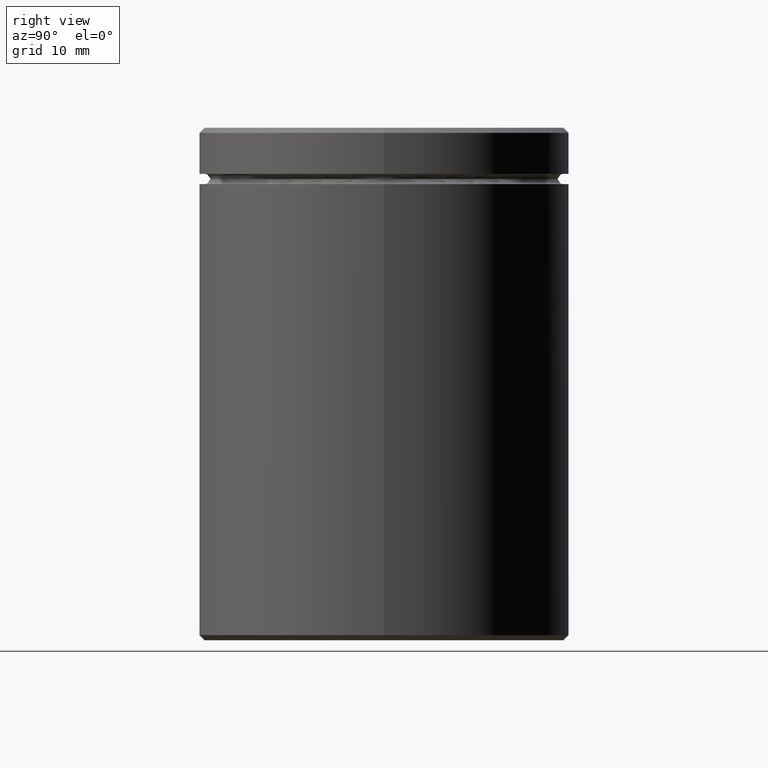
[diagram: clean part render]
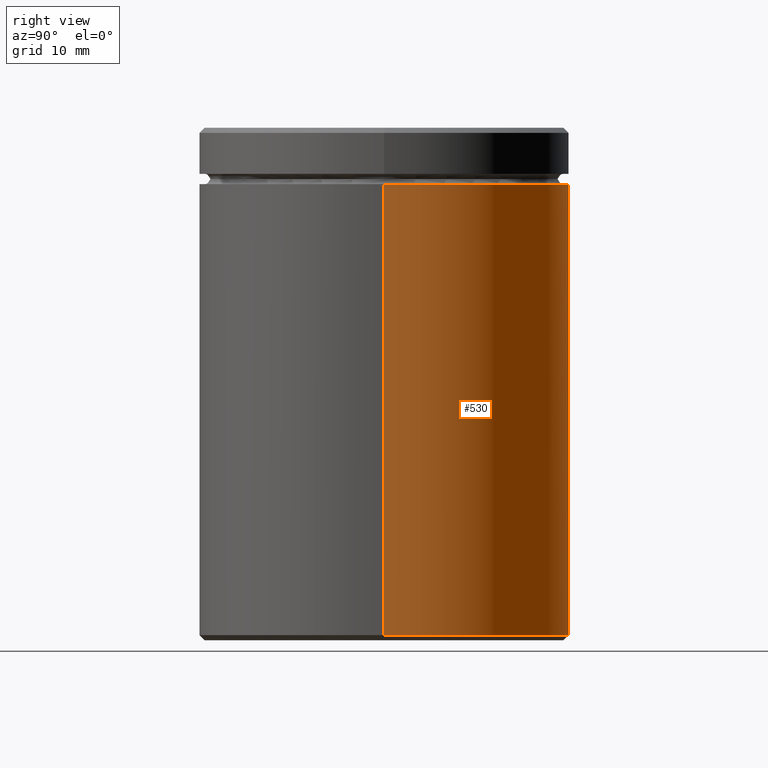
[diagram: same view with one face highlighted and labeled with its STEP entity id]
A machine part, right view. The second image highlights one B-rep face of the part: STEP entity #530.
In plain terms, the highlighted cylindrical surface (partial cylindrical patch) has radius 18 mm, axis along (-0, -0, 1).
Its self-contained STEP definition (entity closure, byte-faithful):
#3 = FACE_OUTER_BOUND ( 'NONE', #231, .T. ) ;
#26 = ORIENTED_EDGE ( 'NONE', *, *, #452, .T. ) ;
#41 = ORIENTED_EDGE ( 'NONE', *, *, #88, .F. ) ;
#44 = DIRECTION ( 'NONE',  ( -0.000000000000000000, -0.000000000000000000, 1.000000000000000000 ) ) ;
#49 = EDGE_CURVE ( 'NONE', #390, #413, #151, .T. ) ;
#66 = CIRCLE ( 'NONE', #389, 18.00000000000000000 ) ;
#70 = CARTESIAN_POINT ( 'NONE',  ( 18.00000000000000000, 0.000000000000000000, -49.50000000000000000 ) ) ;
#78 = DIRECTION ( 'NONE',  ( -0.000000000000000000, -0.000000000000000000, 1.000000000000000000 ) ) ;
#88 = EDGE_CURVE ( 'NONE', #305, #255, #66, .T. ) ;
#112 = AXIS2_PLACEMENT_3D ( 'NONE', #186, #44, #392 ) ;
#119 = CARTESIAN_POINT ( 'NONE',  ( 18.00000000000000000, 0.000000000000000000, 0.000000000000000000 ) ) ;
#151 = CIRCLE ( 'NONE', #112, 18.00000000000000000 ) ;
#158 = CARTESIAN_POINT ( 'NONE',  ( -18.00000000000000000, 2.204364238465235428E-15, 0.000000000000000000 ) ) ;
#182 = CYLINDRICAL_SURFACE ( 'NONE', #189, 18.00000000000000000 ) ;
#186 = CARTESIAN_POINT ( 'NONE',  ( 0.000000000000000000, 0.000000000000000000, -49.50000000000000000 ) ) ;
#189 = AXIS2_PLACEMENT_3D ( 'NONE', #529, #213, #388 ) ;
#211 = LINE ( 'NONE', #158, #221 ) ;
#213 = DIRECTION ( 'NONE',  ( -0.000000000000000000, -0.000000000000000000, 1.000000000000000000 ) ) ;
#221 = VECTOR ( 'NONE', #295, 1000.000000000000000 ) ;
#231 = EDGE_LOOP ( 'NONE', ( #415, #26, #41, #566 ) ) ;
#255 = VERTEX_POINT ( 'NONE', #367 ) ;
#256 = CARTESIAN_POINT ( 'NONE',  ( -18.00000000000000000, 2.204364238465235428E-15, -49.50000000000000000 ) ) ;
#283 = DIRECTION ( 'NONE',  ( -0.000000000000000000, -0.000000000000000000, 1.000000000000000000 ) ) ;
#295 = DIRECTION ( 'NONE',  ( -0.000000000000000000, -0.000000000000000000, 1.000000000000000000 ) ) ;
#305 = VERTEX_POINT ( 'NONE', #414 ) ;
#325 = VECTOR ( 'NONE', #78, 1000.000000000000000 ) ;
#348 = EDGE_CURVE ( 'NONE', #390, #305, #371, .T. ) ;
#367 = CARTESIAN_POINT ( 'NONE',  ( -18.00000000000000000, 2.204364238465235428E-15, -5.500000000000000000 ) ) ;
#371 = LINE ( 'NONE', #119, #325 ) ;
#388 = DIRECTION ( 'NONE',  ( 1.000000000000000000, 0.000000000000000000, 0.000000000000000000 ) ) ;
#389 = AXIS2_PLACEMENT_3D ( 'NONE', #444, #283, #502 ) ;
#390 = VERTEX_POINT ( 'NONE', #70 ) ;
#392 = DIRECTION ( 'NONE',  ( -1.000000000000000000, 0.000000000000000000, 0.000000000000000000 ) ) ;
#413 = VERTEX_POINT ( 'NONE', #256 ) ;
#414 = CARTESIAN_POINT ( 'NONE',  ( 18.00000000000000000, 0.000000000000000000, -5.500000000000000000 ) ) ;
#415 = ORIENTED_EDGE ( 'NONE', *, *, #49, .T. ) ;
#444 = CARTESIAN_POINT ( 'NONE',  ( 0.000000000000000000, 0.000000000000000000, -5.500000000000000000 ) ) ;
#452 = EDGE_CURVE ( 'NONE', #413, #255, #211, .T. ) ;
#502 = DIRECTION ( 'NONE',  ( 1.000000000000000000, 0.000000000000000000, 0.000000000000000000 ) ) ;
#529 = CARTESIAN_POINT ( 'NONE',  ( 0.000000000000000000, 0.000000000000000000, 0.000000000000000000 ) ) ;
#530 = ADVANCED_FACE ( 'NONE', ( #3 ), #182, .T. ) ;
#566 = ORIENTED_EDGE ( 'NONE', *, *, #348, .F. ) ;